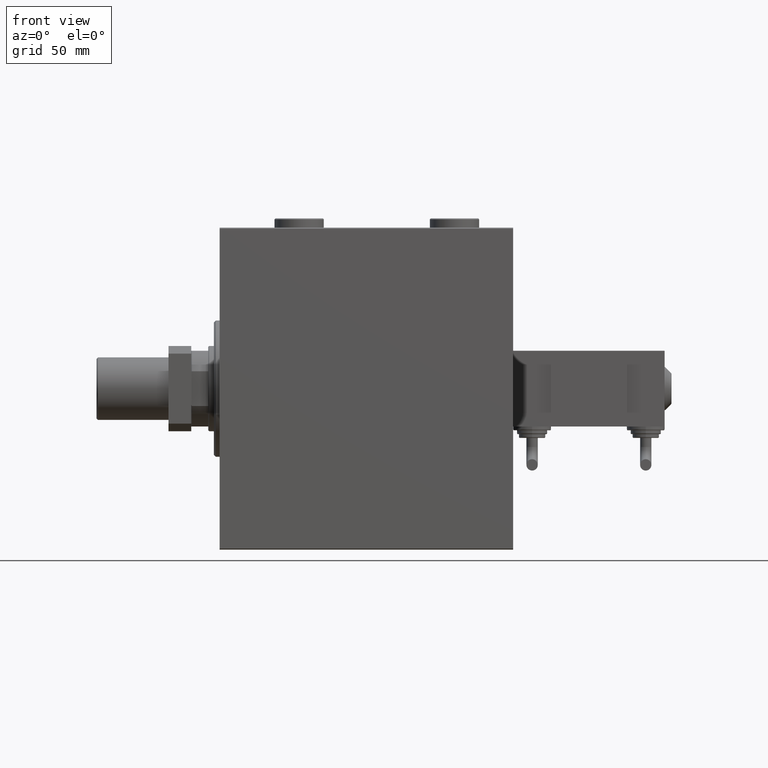
[diagram: clean part render]
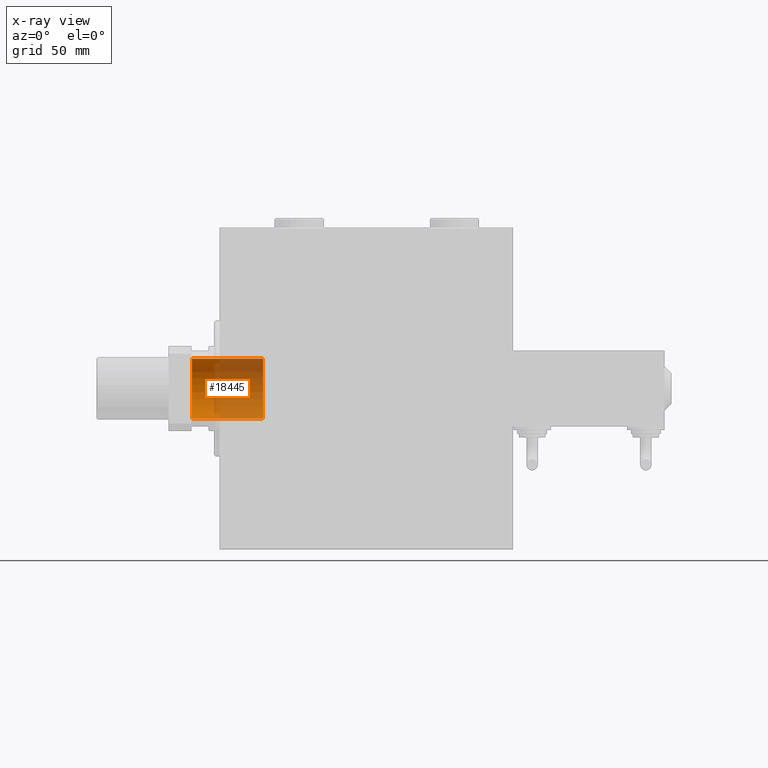
[diagram: x-ray — body ghosted, one internal face saturated and labeled with its STEP entity id]
A machine part, front view, then the same camera in x-ray: the body is ghosted and one INTERNAL B-rep face — a face not visible from any outside direction — is saturated and labeled: STEP entity #18445.
In plain terms, the highlighted cylindrical surface (edge-blend (fillet) strip) has radius 15.75 mm, axis along (-1, 0, 0).
Its self-contained STEP definition (entity closure, byte-faithful):
#2308 = DIRECTION ( 'NONE',  ( -0.000000000000000000, -0.000000000000000000, 1.000000000000000000 ) ) ;
#2873 = EDGE_CURVE ( 'NONE', #21525, #25238, #42351, .T. ) ;
#3118 = EDGE_CURVE ( 'NONE', #49212, #8228, #34043, .T. ) ;
#6178 = ORIENTED_EDGE ( 'NONE', *, *, #20733, .T. ) ;
#8228 = VERTEX_POINT ( 'NONE', #39678 ) ;
#12011 = AXIS2_PLACEMENT_3D ( 'NONE', #36454, #32553, #12765 ) ;
#12765 = DIRECTION ( 'NONE',  ( 1.000000000000000000, 0.000000000000000000, 0.000000000000000000 ) ) ;
#13470 = CARTESIAN_POINT ( 'NONE',  ( 0.000000000000000000, 0.000000000000000000, 143.6999999999999602 ) ) ;
#13725 = DIRECTION ( 'NONE',  ( 1.000000000000000000, 0.000000000000000000, 0.000000000000000000 ) ) ;
#16685 = CYLINDRICAL_SURFACE ( 'NONE', #12011, 15.74999999999999289 ) ;
#18445 = ADVANCED_FACE ( 'NONE', ( #20571 ), #16685, .F. ) ;
#20571 = FACE_OUTER_BOUND ( 'NONE', #31802, .T. ) ;
#20733 = EDGE_CURVE ( 'NONE', #21525, #49212, #44509, .T. ) ;
#21525 = VERTEX_POINT ( 'NONE', #45279 ) ;
#22740 = LINE ( 'NONE', #30541, #49961 ) ;
#22975 = CARTESIAN_POINT ( 'NONE',  ( 15.74999999999999289, 0.000000000000000000, 143.6999999999999602 ) ) ;
#25238 = VERTEX_POINT ( 'NONE', #28154 ) ;
#26806 = ORIENTED_EDGE ( 'NONE', *, *, #2873, .F. ) ;
#28154 = CARTESIAN_POINT ( 'NONE',  ( -15.74999999999999289, 1.928818708657080556E-15, 106.0000000000000142 ) ) ;
#29339 = DIRECTION ( 'NONE',  ( 0.000000000000000000, 0.000000000000000000, 1.000000000000000000 ) ) ;
#30541 = CARTESIAN_POINT ( 'NONE',  ( -15.74999999999999289, 1.928818708657080556E-15, 144.0000000000000284 ) ) ;
#31802 = EDGE_LOOP ( 'NONE', ( #43736, #26806, #6178, #32569 ) ) ;
#32553 = DIRECTION ( 'NONE',  ( -0.000000000000000000, -0.000000000000000000, 1.000000000000000000 ) ) ;
#32569 = ORIENTED_EDGE ( 'NONE', *, *, #3118, .T. ) ;
#34043 = CIRCLE ( 'NONE', #51525, 15.74999999999999289 ) ;
#36454 = CARTESIAN_POINT ( 'NONE',  ( 0.000000000000000000, 0.000000000000000000, 144.0000000000000284 ) ) ;
#36670 = CARTESIAN_POINT ( 'NONE',  ( 15.74999999999999289, 0.000000000000000000, 144.0000000000000284 ) ) ;
#36711 = EDGE_CURVE ( 'NONE', #25238, #8228, #22740, .T. ) ;
#37695 = DIRECTION ( 'NONE',  ( -0.000000000000000000, -0.000000000000000000, 1.000000000000000000 ) ) ;
#39678 = CARTESIAN_POINT ( 'NONE',  ( -15.74999999999999289, 1.928818708657080556E-15, 143.6999999999999602 ) ) ;
#41080 = VECTOR ( 'NONE', #37695, 1000.000000000000000 ) ;
#42351 = CIRCLE ( 'NONE', #46511, 15.74999999999999289 ) ;
#42543 = DIRECTION ( 'NONE',  ( -0.000000000000000000, -0.000000000000000000, 1.000000000000000000 ) ) ;
#43736 = ORIENTED_EDGE ( 'NONE', *, *, #36711, .F. ) ;
#44509 = LINE ( 'NONE', #36670, #41080 ) ;
#45279 = CARTESIAN_POINT ( 'NONE',  ( 15.74999999999999289, 0.000000000000000000, 106.0000000000000142 ) ) ;
#46511 = AXIS2_PLACEMENT_3D ( 'NONE', #50237, #2308, #46829 ) ;
#46829 = DIRECTION ( 'NONE',  ( 1.000000000000000000, 0.000000000000000000, 0.000000000000000000 ) ) ;
#49212 = VERTEX_POINT ( 'NONE', #22975 ) ;
#49961 = VECTOR ( 'NONE', #42543, 1000.000000000000000 ) ;
#50237 = CARTESIAN_POINT ( 'NONE',  ( 0.000000000000000000, 0.000000000000000000, 106.0000000000000142 ) ) ;
#51525 = AXIS2_PLACEMENT_3D ( 'NONE', #13470, #29339, #13725 ) ;